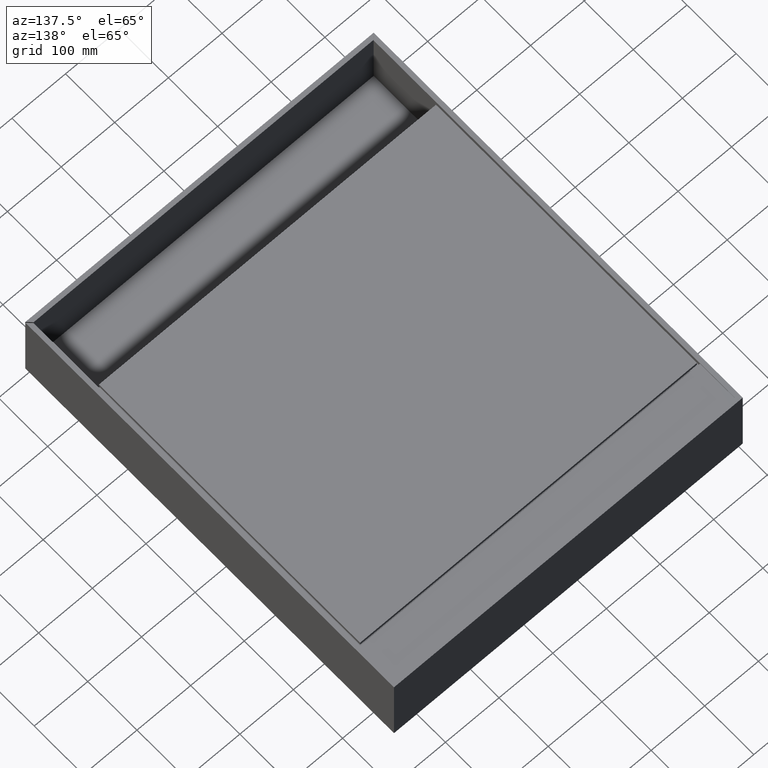
[diagram: clean part render]
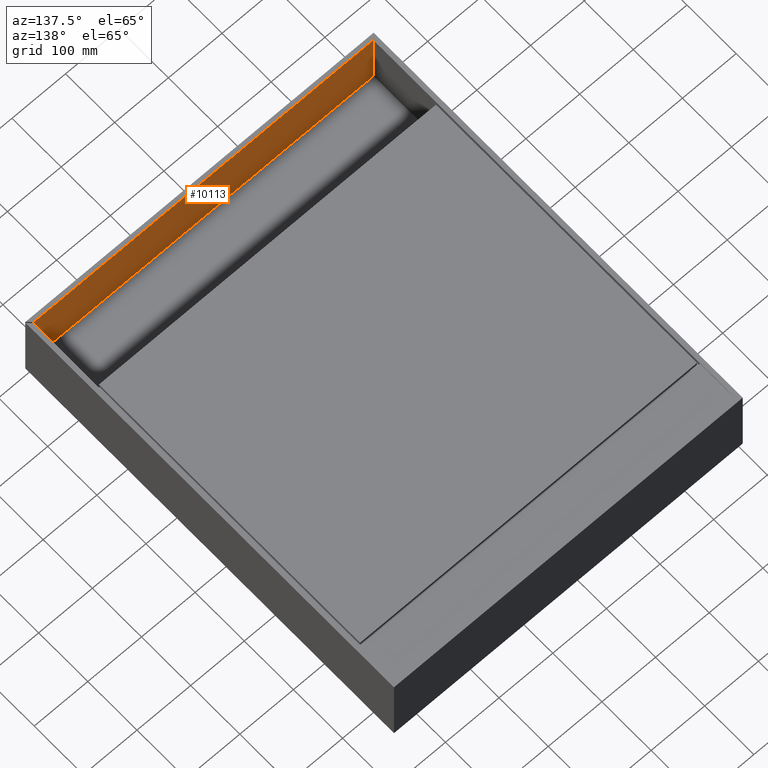
[diagram: same view with one face highlighted and labeled with its STEP entity id]
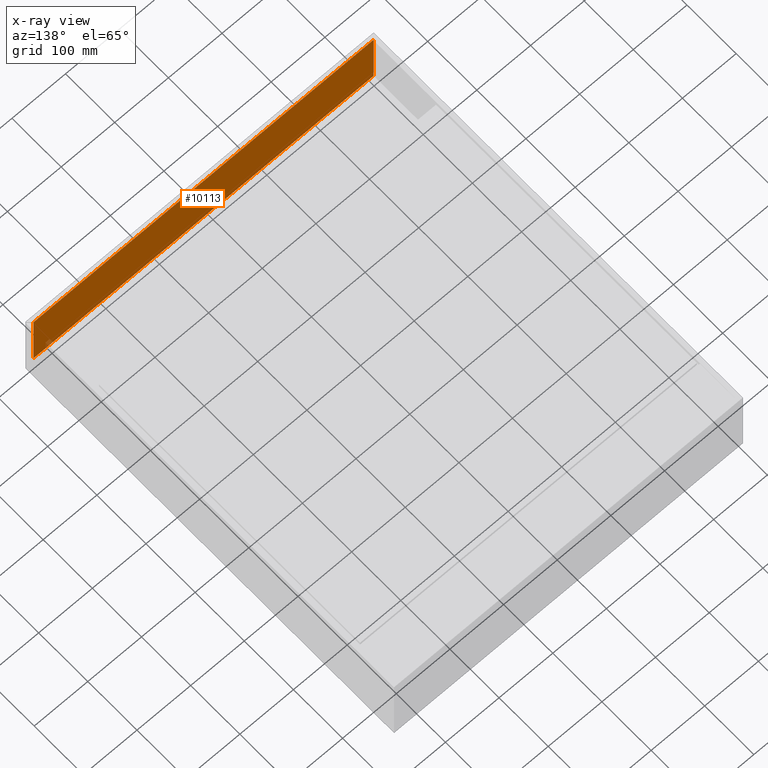
[diagram: x-ray of the same camera — body ghosted, the highlighted face saturated]
A machine part, auxiliary view. The second image highlights one B-rep face of the part: STEP entity #10113.
The next image is the same camera in x-ray: the body ghosted, the highlighted face saturated — about 0% of this face is hidden behind the body in this view.
In plain terms, the highlighted planar face has unit normal (0, 1, 0).
Its self-contained STEP definition (entity closure, byte-faithful):
#153 = VECTOR ( 'NONE', #4175, 1000.000000000000000 ) ;
#351 = LINE ( 'NONE', #3843, #6307 ) ;
#624 = VERTEX_POINT ( 'NONE', #1285 ) ;
#683 = CARTESIAN_POINT ( 'NONE',  ( 0.0000000000000000000, 8.000000000000000000, 1.000000000000000000 ) ) ;
#916 = EDGE_CURVE ( 'NONE', #2809, #7521, #351, .T. ) ;
#1173 = VERTEX_POINT ( 'NONE', #4810 ) ;
#1285 = CARTESIAN_POINT ( 'NONE',  ( 8.000000000000062172, 8.000000000000000000, 1.000000000000000000 ) ) ;
#1869 = LINE ( 'NONE', #5361, #7155 ) ;
#1876 = ORIENTED_EDGE ( 'NONE', *, *, #916, .T. ) ;
#2314 = CARTESIAN_POINT ( 'NONE',  ( 641.9999999999998863, 8.000000000000000000, 1.000000000000000000 ) ) ;
#2372 = CARTESIAN_POINT ( 'NONE',  ( 0.0000000000000000000, 8.000000000000000000, 0.0000000000000000000 ) ) ;
#2809 = VERTEX_POINT ( 'NONE', #2314 ) ;
#3108 = CARTESIAN_POINT ( 'NONE',  ( -1.341519488088730925E-14, 8.000000000000000000, -115.9999999999999716 ) ) ;
#3843 = CARTESIAN_POINT ( 'NONE',  ( 641.9999999999998863, 8.000000000000000000, -117.0000000000000711 ) ) ;
#4175 = DIRECTION ( 'NONE',  ( 1.000000000000000000, 0.0000000000000000000, 0.0000000000000000000 ) ) ;
#4502 = ORIENTED_EDGE ( 'NONE', *, *, #9884, .T. ) ;
#4718 = VECTOR ( 'NONE', #6596, 1000.000000000000000 ) ;
#4810 = CARTESIAN_POINT ( 'NONE',  ( 8.000000000000062172, 8.000000000000000000, -115.9999999999999716 ) ) ;
#4987 = EDGE_CURVE ( 'NONE', #1173, #7521, #10966, .T. ) ;
#5361 = CARTESIAN_POINT ( 'NONE',  ( 8.000000000000062172, 8.000000000000000000, 1.000000000000000000 ) ) ;
#5856 = DIRECTION ( 'NONE',  ( 0.0000000000000000000, 1.000000000000000000, 0.0000000000000000000 ) ) ;
#6096 = CARTESIAN_POINT ( 'NONE',  ( 641.9999999999998863, 8.000000000000000000, -116.0000000000000426 ) ) ;
#6307 = VECTOR ( 'NONE', #7333, 1000.000000000000000 ) ;
#6596 = DIRECTION ( 'NONE',  ( 1.000000000000000000, 0.0000000000000000000, -1.156482317317871725E-16 ) ) ;
#6717 = FACE_OUTER_BOUND ( 'NONE', #11196, .T. ) ;
#7019 = EDGE_CURVE ( 'NONE', #624, #2809, #8535, .T. ) ;
#7155 = VECTOR ( 'NONE', #8862, 1000.000000000000000 ) ;
#7333 = DIRECTION ( 'NONE',  ( 0.0000000000000000000, 0.0000000000000000000, -1.000000000000000000 ) ) ;
#7338 = AXIS2_PLACEMENT_3D ( 'NONE', #2372, #5856, #9363 ) ;
#7521 = VERTEX_POINT ( 'NONE', #6096 ) ;
#8535 = LINE ( 'NONE', #683, #153 ) ;
#8857 = ORIENTED_EDGE ( 'NONE', *, *, #7019, .T. ) ;
#8862 = DIRECTION ( 'NONE',  ( 0.0000000000000000000, 0.0000000000000000000, 1.000000000000000000 ) ) ;
#9075 = ORIENTED_EDGE ( 'NONE', *, *, #4987, .F. ) ;
#9363 = DIRECTION ( 'NONE',  ( 0.0000000000000000000, -0.0000000000000000000, 1.000000000000000000 ) ) ;
#9884 = EDGE_CURVE ( 'NONE', #1173, #624, #1869, .T. ) ;
#10113 = ADVANCED_FACE ( 'NONE', ( #6717 ), #10232, .T. ) ;
#10232 = PLANE ( 'NONE',  #7338 ) ;
#10966 = LINE ( 'NONE', #3108, #4718 ) ;
#11196 = EDGE_LOOP ( 'NONE', ( #9075, #4502, #8857, #1876 ) ) ;